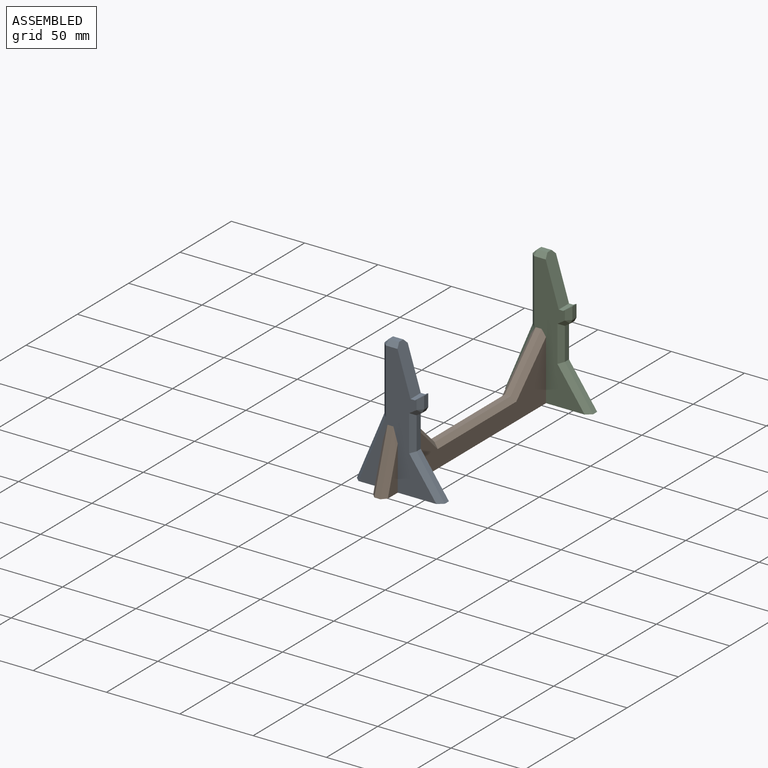
[diagram: assembled view]
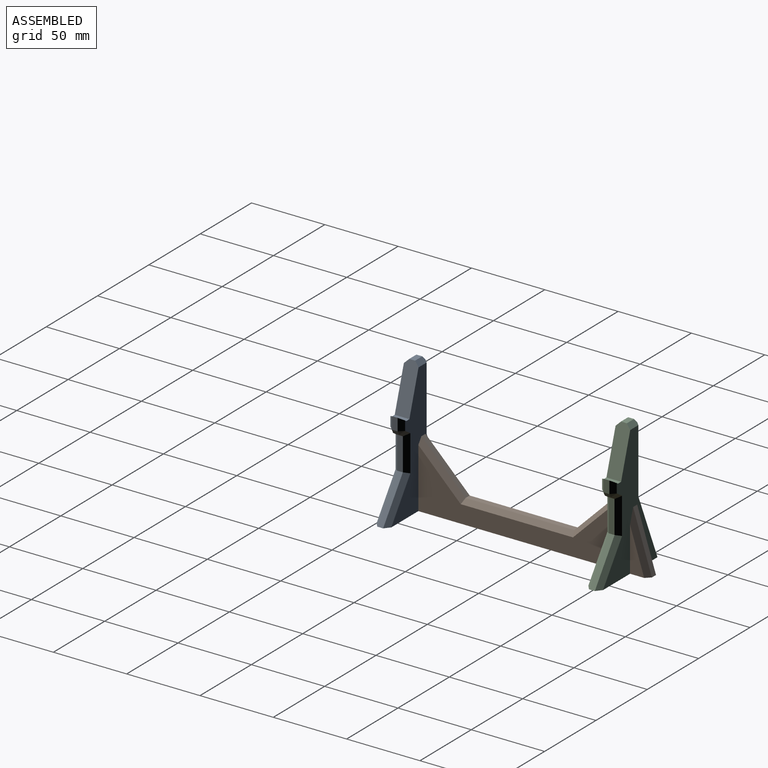
[diagram: assembled view, second angle]
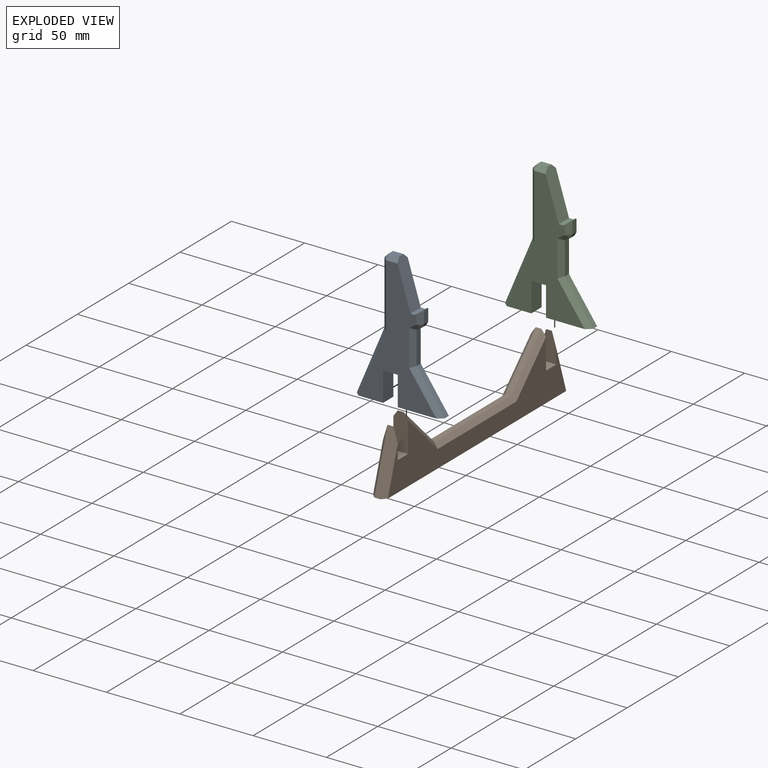
[diagram: exploded view]
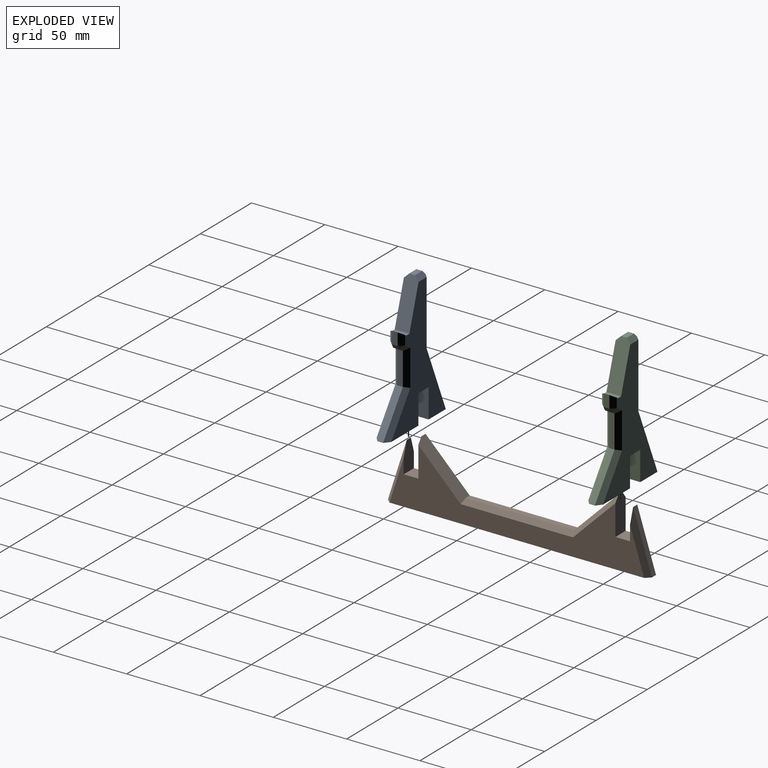
[diagram: exploded view, second angle]
ASSEMBLY  parts=3 mates=2
PART A: 37 faces, bbox 60x10x91.5 mm
  f0: plane 45x18.86mm, normal (-0.92,0,0.39), area 195.2mm2, adj f1,f14,f17,f21
  f1: plane 20x10mm, normal (0,0,-1), area 190.2mm2, adj f0,f2,f15,f16,f17,f21
  f2: plane 20x10mm, normal (1,0,0), area 200mm2, adj f1,f3,f15,f16
  f3: plane 10x10mm, normal (0,0,-1), area 100mm2, adj f2,f4,f15,f16
  f4: plane 20x10mm, normal (-1,0,0), area 200mm2, adj f3,f5,f15,f16
  f5: plane 30x10mm, normal (0,0,-1), area 289mm2, adj f4,f6,f15,f16,f26,f28
  f6: plane 27.19x19.21mm, normal (0.82,0,0.58), area 133.2mm2, adj f5,f7,f26,f28
  f7: plane 22.22x4mm, normal (1,0,0), area 88.9mm2, adj f6,f8,f27,f31
  f8: plane 4x3.73mm, normal (0.55,0,-0.84), area 17.8mm2, adj f7,f29,f33,f34
  f9: plane 8.38x4mm, normal (1,0,0), area 33.5mm2, adj f10,f30,f34,f36
  f10: plane 10x4.18mm, normal (-0.55,0,0.84), area 39.2mm2, adj f9,f11,f15,f16,f30,f36
  f11: plane 10x3mm, normal (0,0,1), area 30mm2, adj f10,f12,f15,f16
  f12: plane 31.5x10mm, normal (0.95,0,0.3), area 320.6mm2, adj f11,f13,f15,f16,f18,f25
  f13: plane 7x4mm, normal (0,0,1), area 28mm2, adj f12,f18,f22,f25
  f14: plane 43.5x4mm, normal (-1,0,0), area 174mm2, adj f0,f19,f22,f23
  f15: plane 88.5x53.07mm, normal (0,-1,0), area 1802.7mm2, adj f1,f2,f3,f4,f5,f10,f11,f12
  f16: plane 88.5x53.07mm, normal (0,1,0), area 1802.7mm2, adj f1,f2,f3,f4,f5,f10,f11,f12
  f17: plane 45x21.86mm, normal (-0.65,-0.71,0.27), area 205.6mm2, adj f0,f1,f15,f19
  f18: plane 7.94x3mm, normal (0,-0.71,0.71), area 31.7mm2, adj f12,f13,f15,f20
  f19: plane 44.1x3mm, normal (-0.71,-0.71,0), area 185.8mm2, adj f14,f15,f17,f20
  f20: plane 3x3mm, normal (-0.58,-0.58,0.58), area 7.8mm2, adj f18,f19,f22
  f21: plane 45x21.86mm, normal (-0.65,0.71,0.27), area 205.6mm2, adj f0,f1,f16,f23
  f22: plane 4x3mm, normal (-0.71,0,0.71), area 17mm2, adj f13,f14,f20,f24
  f23: plane 44.1x3mm, normal (-0.71,0.71,0), area 185.8mm2, adj f14,f16,f21,f24
  f24: plane 3x3mm, normal (-0.58,0.58,0.58), area 7.8mm2, adj f22,f23,f25
  f25: plane 7.94x3mm, normal (0,0.71,0.71), area 31.7mm2, adj f12,f13,f16,f24
  f26: plane 27.19x22.21mm, normal (0.58,-0.71,0.41), area 138.8mm2, adj f5,f6,f15,f27
  f27: plane 24.79x3mm, normal (0.71,-0.71,0), area 99.7mm2, adj f7,f15,f26,f29
  f28: plane 27.19x22.21mm, normal (0.58,0.71,0.41), area 138.8mm2, adj f5,f6,f16,f31
  f29: plane 6.73x4.95mm, normal (0.39,-0.71,-0.59), area 22.4mm2, adj f8,f15,f27,f32
  f30: plane 8.38x3mm, normal (0.71,-0.71,0), area 31.4mm2, adj f9,f10,f15,f32
  f31: plane 24.79x3mm, normal (0.71,0.71,0), area 99.7mm2, adj f7,f16,f28,f33
  f32: plane 3x3mm, normal (0.66,-0.66,-0.36), area 5.7mm2, adj f29,f30,f34
  f33: plane 6.73x4.95mm, normal (0.39,0.71,-0.59), area 22.4mm2, adj f8,f16,f31,f35
  f34: plane 4x2.51mm, normal (0.88,0,-0.48), area 11.4mm2, adj f8,f9,f32,f35
  f35: plane 3x3mm, normal (0.66,0.66,-0.36), area 5.7mm2, adj f33,f34,f36
  f36: plane 8.38x3mm, normal (0.71,0.71,0), area 31.4mm2, adj f9,f10,f16,f35
PART B: 24 faces, bbox 180x10x45 mm
  f0: plane 40x12.81mm, normal (-0.95,0,0.3), area 168mm2, adj f1,f11,f22,f23
  f1: plane 180x10mm, normal (0,0,-1), area 1781.1mm2, adj f0,f2,f12,f13,f14,f18,f22,f23
  f2: plane 40x12.81mm, normal (0.95,0,0.3), area 168mm2, adj f1,f3,f14,f18
  f3: plane 20x10mm, normal (-1,0,0), area 170.5mm2, adj f2,f4,f12,f13,f14,f18
  f4: plane 10x10mm, normal (0,0,1), area 100mm2, adj f3,f5,f12,f13
  f5: plane 25x10mm, normal (1,0,0), area 237.3mm2, adj f4,f6,f12,f13,f15,f21
  f6: plane 30.15x30mm, normal (-0.71,0,0.71), area 170.1mm2, adj f5,f7,f15,f21
  f7: plane 74.09x4mm, normal (0,0,1), area 296.3mm2, adj f6,f8,f16,f20
  f8: plane 30.15x30mm, normal (0.71,0,0.71), area 170.1mm2, adj f7,f9,f17,f19
  f9: plane 25x10mm, normal (-1,0,0), area 237.3mm2, adj f8,f10,f12,f13,f17,f19
  f10: plane 10x10mm, normal (0,0,1), area 100mm2, adj f9,f11,f12,f13
  f11: plane 20x10mm, normal (1,0,0), area 170.5mm2, adj f0,f10,f12,f13,f22,f23
  f12: plane 173.7x40.77mm, normal (0,-1,0), area 3135.6mm2, adj f1,f3,f4,f5,f9,f10,f11,f18
  f13: plane 173.7x40.77mm, normal (0,1,0), area 3135.6mm2, adj f1,f3,f4,f5,f9,f10,f11,f14
  f14: plane 40x12.81mm, normal (0.67,0.71,0.22), area 156.3mm2, adj f1,f2,f3,f13
  f15: plane 33x30.15mm, normal (-0.5,0.71,0.5), area 176.7mm2, adj f5,f6,f13,f16
  f16: plane 76.56x3mm, normal (0,0.71,0.71), area 319.6mm2, adj f7,f13,f15,f17
  f17: plane 33x30.15mm, normal (0.5,0.71,0.5), area 176.7mm2, adj f8,f9,f13,f16
  f18: plane 40x12.81mm, normal (0.67,-0.71,0.22), area 156.3mm2, adj f1,f2,f3,f12
  f19: plane 33x30.15mm, normal (0.5,-0.71,0.5), area 176.7mm2, adj f8,f9,f12,f20
  f20: plane 76.56x3mm, normal (0,-0.71,0.71), area 319.6mm2, adj f7,f12,f19,f21
  f21: plane 33x30.15mm, normal (-0.5,-0.71,0.5), area 176.7mm2, adj f5,f6,f12,f20
  f22: plane 40x12.81mm, normal (-0.67,0.71,0.22), area 156.3mm2, adj f0,f1,f11,f13
  f23: plane 40x12.81mm, normal (-0.67,-0.71,0.22), area 156.3mm2, adj f0,f1,f11,f12
PART C: same geometry as A
PLACE A t=(23.64,-86.06,-4.62)mm
PLACE B rot(axis=(0,0,-1),90deg) t=(-14.17,-13.77,-43.07)mm
PLACE C t=(23.64,58.33,-4.62)mm
MATE fastened B.f10 <-> C.f3  axis (0,0,1) through (-19.17,53.33,-29.62)mm
MATE fastened A.f3 <-> B.f4  axis (0,0,-1) through (-19.17,-91.06,-29.62)mm
